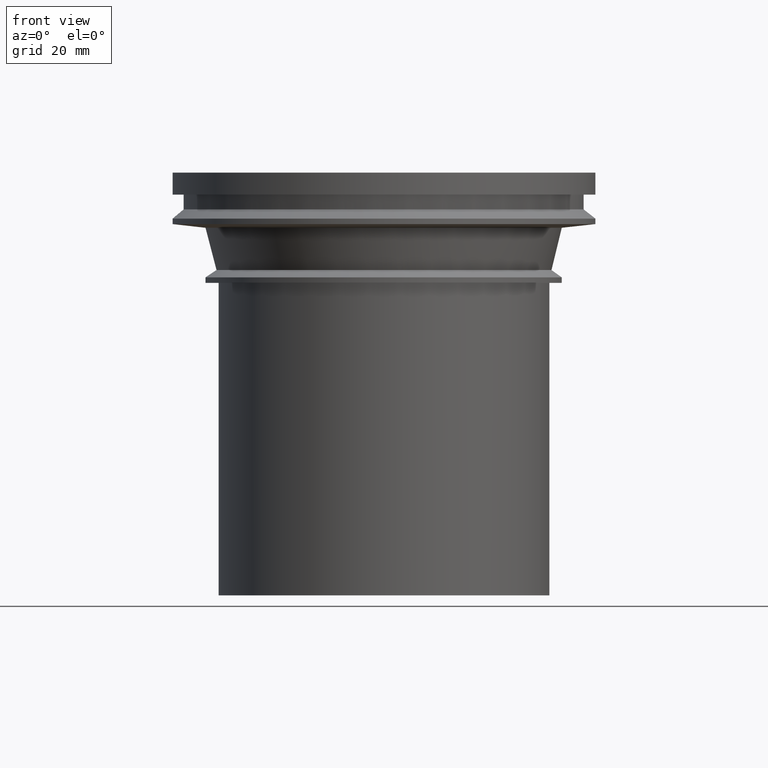
[diagram: clean part render]
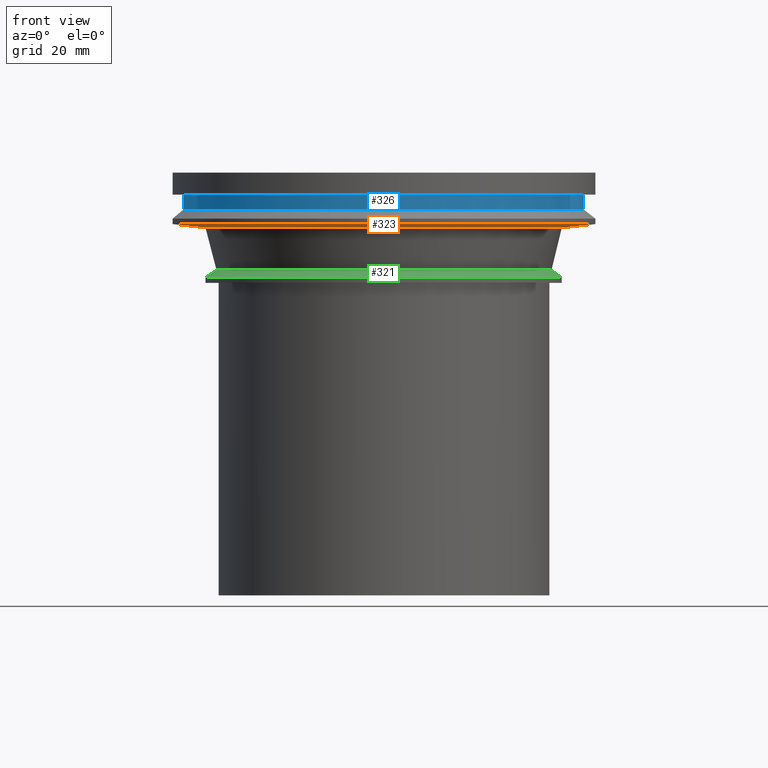
[diagram: same view with three faces highlighted in distinct colors, each labeled with its STEP entity id]
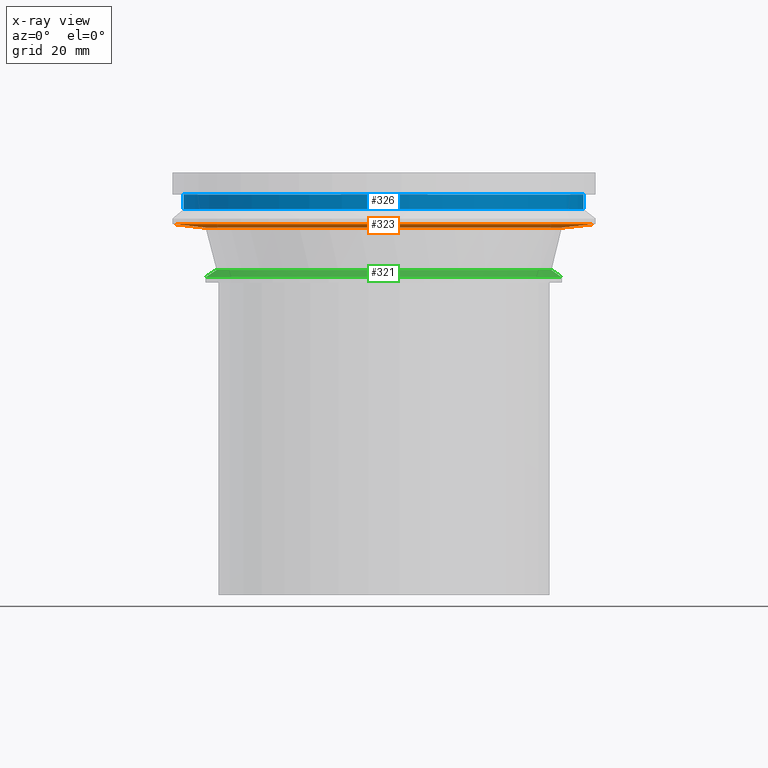
[diagram: x-ray of the same camera — body ghosted, the three highlighted faces saturated]
A machine part, front view with three faces highlighted in distinct colors.
The next image is the same camera in x-ray (body ghosted, the three faces saturated) — at least one of them is partly hidden behind the body in this view.
Their STEP definitions:

[orange] entity #323 — the highlighted conical surface has half-angle 83.62 deg.
#25=CONICAL_SURFACE('',#401,48.556,1.45945195543957);
#93=ORIENTED_EDGE('',*,*,#125,.T.);
#94=ORIENTED_EDGE('',*,*,#124,.F.);
#124=EDGE_CURVE('',#151,#151,#178,.T.);
#125=EDGE_CURVE('',#152,#152,#179,.T.);
#151=VERTEX_POINT('',#595);
#152=VERTEX_POINT('',#598);
#178=CIRCLE('',#400,48.556);
#179=CIRCLE('',#402,57.5);
#228=EDGE_LOOP('',(#93));
#229=EDGE_LOOP('',(#94));
#282=FACE_BOUND('',#228,.T.);
#283=FACE_BOUND('',#229,.T.);
#323=ADVANCED_FACE('',(#282,#283),#25,.T.);
#400=AXIS2_PLACEMENT_3D('',#594,#505,#506);
#401=AXIS2_PLACEMENT_3D('',#596,#507,#508);
#402=AXIS2_PLACEMENT_3D('',#597,#509,#510);
#505=DIRECTION('',(0.,0.,-1.));
#506=DIRECTION('',(-1.,0.,0.));
#507=DIRECTION('',(0.,0.,1.));
#508=DIRECTION('',(1.,0.,0.));
#509=DIRECTION('',(0.,0.,-1.));
#510=DIRECTION('',(-1.,0.,0.));
#594=CARTESIAN_POINT('',(0.,0.,-15.));
#595=CARTESIAN_POINT('',(-48.556,0.,-15.));
#596=CARTESIAN_POINT('',(0.,0.,-15.));
#597=CARTESIAN_POINT('',(0.,0.,-14.));
#598=CARTESIAN_POINT('',(-57.5,0.,-14.));

[blue] entity #326 — the highlighted cylindrical surface (bore or boss wall) has radius 54.5 mm, axis along (0, 0, -1).
#46=CYLINDRICAL_SURFACE('',#407,54.5);
#99=ORIENTED_EDGE('',*,*,#106,.T.);
#100=ORIENTED_EDGE('',*,*,#127,.F.);
#106=EDGE_CURVE('',#133,#133,#160,.T.);
#127=EDGE_CURVE('',#154,#154,#181,.T.);
#133=VERTEX_POINT('',#541);
#154=VERTEX_POINT('',#604);
#160=CIRCLE('',#364,54.5);
#181=CIRCLE('',#406,54.5);
#234=EDGE_LOOP('',(#99));
#235=EDGE_LOOP('',(#100));
#288=FACE_BOUND('',#234,.T.);
#289=FACE_BOUND('',#235,.T.);
#326=ADVANCED_FACE('',(#288,#289),#46,.T.);
#364=AXIS2_PLACEMENT_3D('',#540,#433,#434);
#406=AXIS2_PLACEMENT_3D('',#603,#517,#518);
#407=AXIS2_PLACEMENT_3D('',#605,#519,#520);
#433=DIRECTION('',(0.,0.,-1.));
#434=DIRECTION('',(-1.,0.,0.));
#517=DIRECTION('',(0.,0.,-1.));
#518=DIRECTION('',(-1.,0.,0.));
#519=DIRECTION('',(0.,0.,-1.));
#520=DIRECTION('',(-1.,0.,0.));
#540=CARTESIAN_POINT('',(0.,0.,-6.));
#541=CARTESIAN_POINT('',(-54.5,0.,-6.));
#603=CARTESIAN_POINT('',(0.,0.,-10.));
#604=CARTESIAN_POINT('',(-54.5,0.,-10.));
#605=CARTESIAN_POINT('',(0.,0.,-50.));

[green] entity #321 — the highlighted conical surface has half-angle 56.31 deg.
#23=CONICAL_SURFACE('',#397,48.556,0.982793723247329);
#89=ORIENTED_EDGE('',*,*,#123,.T.);
#90=ORIENTED_EDGE('',*,*,#122,.F.);
#122=EDGE_CURVE('',#149,#149,#176,.T.);
#123=EDGE_CURVE('',#150,#150,#177,.T.);
#149=VERTEX_POINT('',#589);
#150=VERTEX_POINT('',#592);
#176=CIRCLE('',#396,48.556);
#177=CIRCLE('',#398,45.556);
#224=EDGE_LOOP('',(#89));
#225=EDGE_LOOP('',(#90));
#278=FACE_BOUND('',#224,.T.);
#279=FACE_BOUND('',#225,.T.);
#321=ADVANCED_FACE('',(#278,#279),#23,.T.);
#396=AXIS2_PLACEMENT_3D('',#588,#497,#498);
#397=AXIS2_PLACEMENT_3D('',#590,#499,#500);
#398=AXIS2_PLACEMENT_3D('',#591,#501,#502);
#497=DIRECTION('',(0.,0.,-1.));
#498=DIRECTION('',(-1.,0.,0.));
#499=DIRECTION('',(0.,0.,-1.));
#500=DIRECTION('',(-1.,0.,0.));
#501=DIRECTION('',(0.,0.,-1.));
#502=DIRECTION('',(-1.,0.,0.));
#588=CARTESIAN_POINT('',(0.,0.,-28.5));
#589=CARTESIAN_POINT('',(-48.556,0.,-28.5));
#590=CARTESIAN_POINT('',(0.,0.,-28.5));
#591=CARTESIAN_POINT('',(0.,0.,-26.5));
#592=CARTESIAN_POINT('',(-45.556,0.,-26.5));